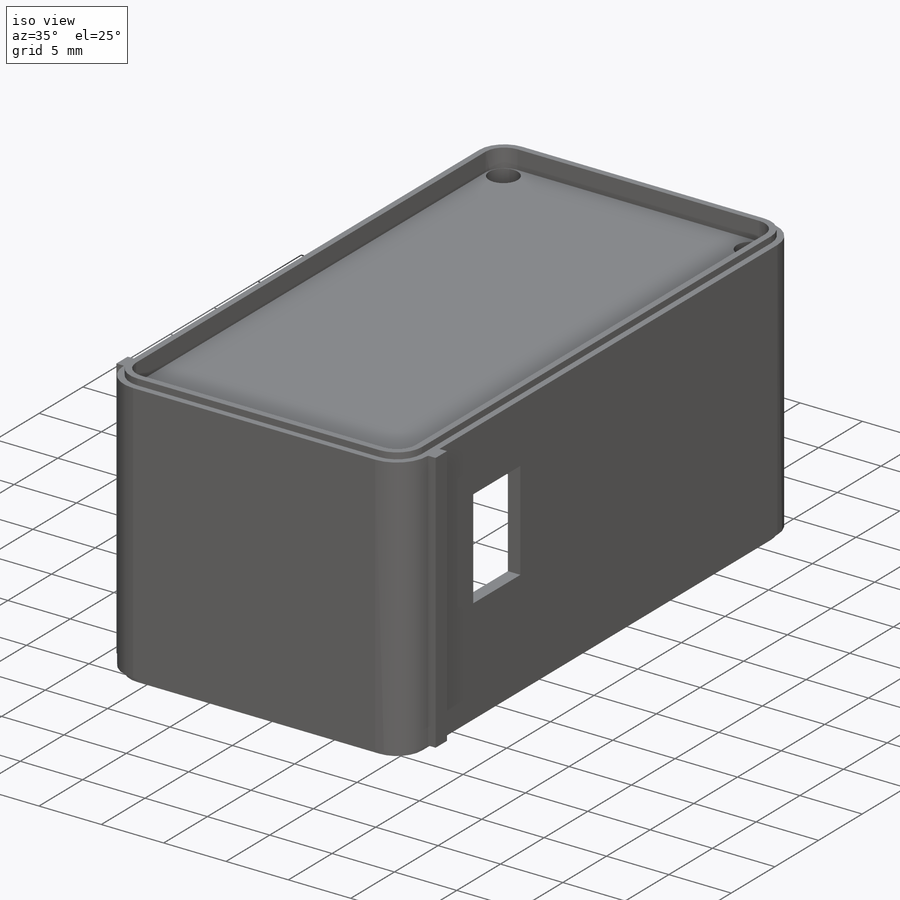
[diagram: iso view]
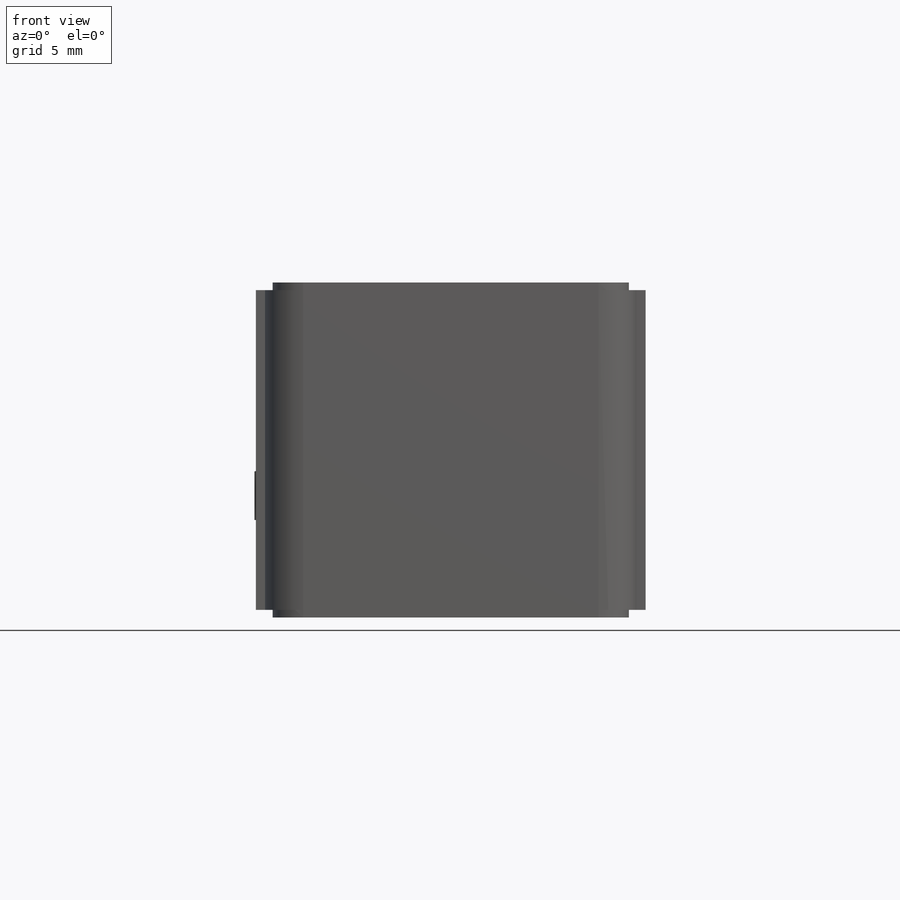
[diagram: front view]
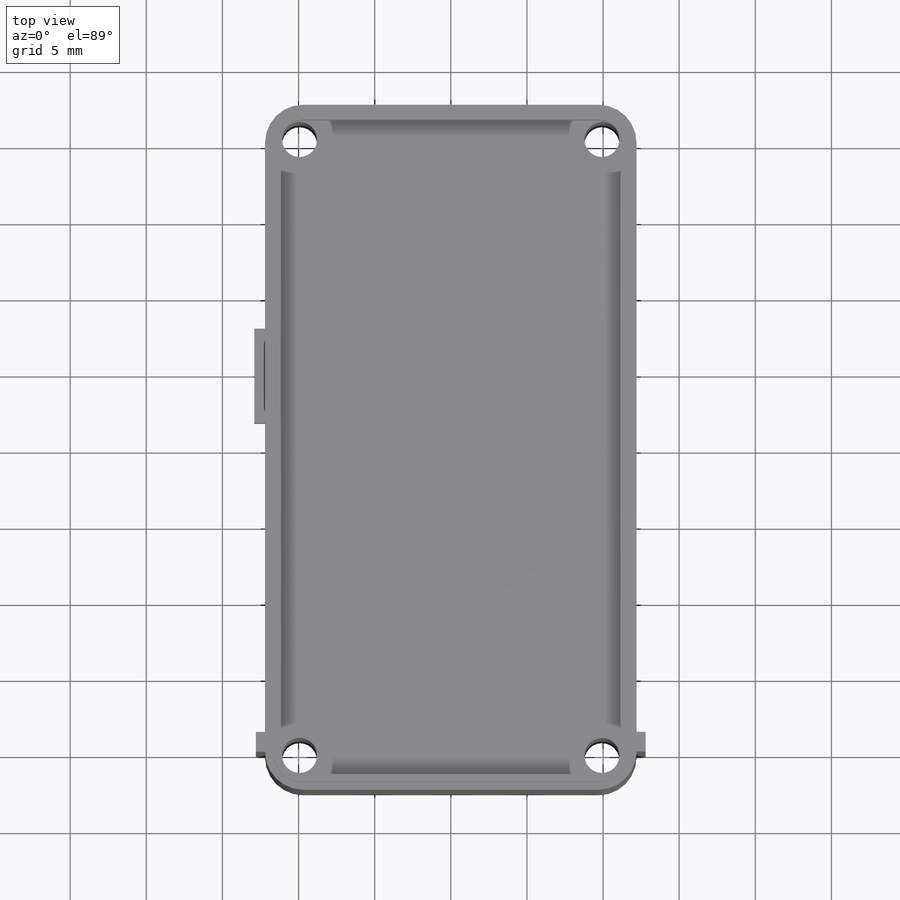
[diagram: top view]
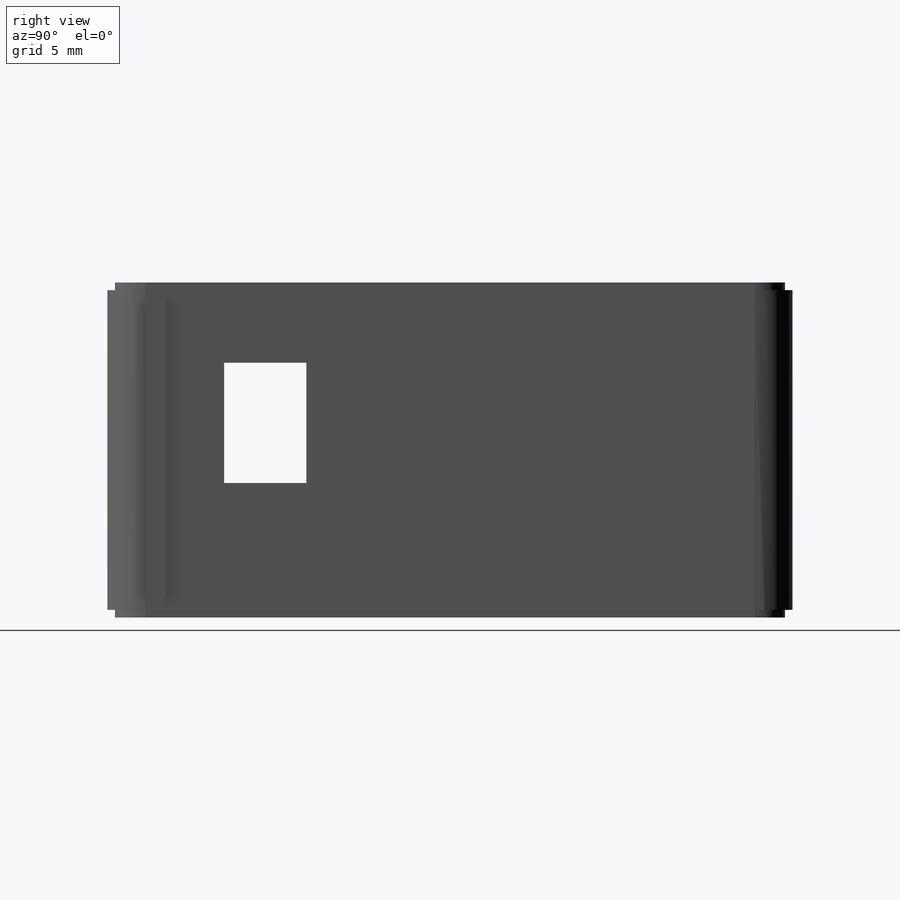
[diagram: right view]
SOLIDWORKS PART (.sldprt)
format: sldprt  version: not decoded by parser v0  size: 501,760 bytes
history: native  units: mm
features: sketch x9, extrude x5, cut_extrude x4, plane x3, mirror x2, material x1, shell x1, chamfer x1 (+10 scaffold rows collapsed)
feature tree (36):
  scaffold x10  (default folders/planes/origin — collapsed)
  material  "ABS PC"
  plane  "Alzado"
  plane  "Planta"
  plane  "Vista lateral"
  sketch  "Croquis1"  dims[c1.D3=2.5mm c1.D5=2.0mm c1.D6=2.3mm c1.D1=24.4mm c1.D2=45.0mm c2.D5=0.5mm c2.D7=2.2mm c2.D8=2.2mm c3.D7=2.2mm c3.D8=2.2mm c4.D7=2.27mm c4.D8=2.27mm c4.D4=1.0mm c4.D5=0.5mm]
  extrude  "Saliente-Extruir1"  Depth=21mm
  cut_extrude  "Cortar-Extruir2"  [1 undecoded]
  sketch  "Croquis1<6>"
  shell  "Vaciado3"  Thickness=1mm
  extrude  "Saliente-Extruir2"  [1 undecoded]
  sketch  "Croquis1<4>"  dims[D1=0.5mm D19=10.5mm]
  mirror  "Simetría3"
  sketch  "Croquis4"  dims[c1.D3=1.5mm c1.D2=0.5mm c1.D1=1.5mm c1.D4=1.5mm c2.D1=1.0mm]
  cut_extrude  "Cortar-Extruir3"  Depth=1mm
  sketch  "Croquis5"  dims[D20=0.6mm D1=8.0mm D2=5.0mm D6=5.0mm D7=0.9mm D8=12.0mm D9=15.0mm D10=7.9mm D11=5.4mm D12=1.0mm D14=2.2mm D15=1.0mm D16=2.0mm D17=1.2mm D19=2.0mm D21=0.8mm D22=0.8mm D23=1.3mm D24=0.8mm D3=0.8mm D4=0.1mm D5=0.3mm D13=4.0 D18=3.0]
  cut_extrude  "Cortar-Extruir4"  Depth=0.8mm
  chamfer  "Chaflán2"  Distance=0.5mm Angle=45deg
  extrude  "Saliente-Extruir3"  [1 undecoded]
  sketch  "Croquis5<3>"  dims[D1=1.5mm]
  cut_extrude  "Cortar-Extruir5"  [1 undecoded]
  sketch  "Croquis5<4>"
  extrude  "Saliente-Extruir4"  [1 undecoded]
  sketch  "Croquis5<6>"  dims[D1=1.4mm]
  extrude  "Saliente-Extruir5"  [1 undecoded]
  sketch  "Croquis5<7>"  dims[D1=0.6mm]
  mirror  "Simetría4"
decode coverage: 12 of 22 modeling features carry decoded parameters
note: 6 parameter values undecoded
summary: no parameter record found for 6 features
note: suppression state not decoded; provenance and decode notes live in map.json
